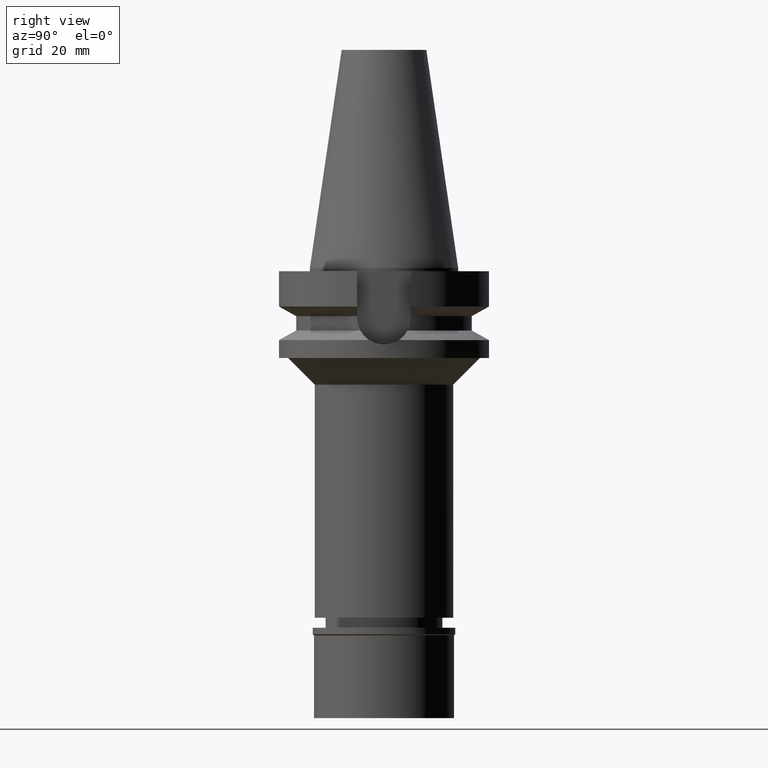
[diagram: clean part render]
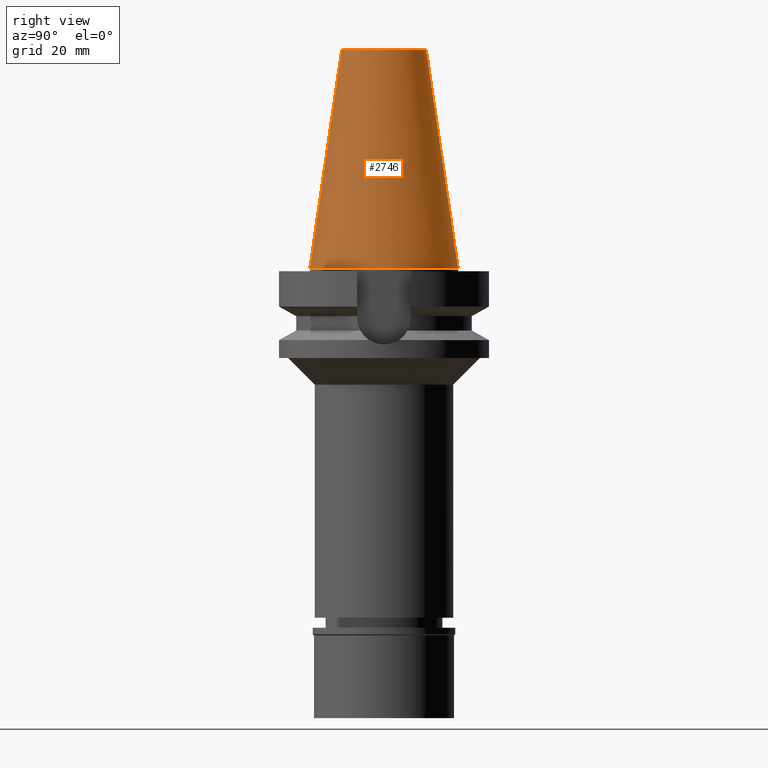
[diagram: same view with one face highlighted and labeled with its STEP entity id]
A machine part, right view. The second image highlights one B-rep face of the part: STEP entity #2746.
In plain terms, the highlighted conical surface has half-angle 8.297 deg.
Its self-contained STEP definition (entity closure, byte-faithful):
#131 = DIRECTION ( 'NONE',  ( 0.0000000000000000000, 0.0000000000000000000, -1.000000000000000000 ) ) ;
#204 = VECTOR ( 'NONE', #1346, 1000.000000000000114 ) ;
#211 = ORIENTED_EDGE ( 'NONE', *, *, #1532, .F. ) ;
#362 = CARTESIAN_POINT ( 'NONE',  ( 0.0000000000000000000, -12.68766899429999917, 65.40000000000000568 ) ) ;
#401 = CARTESIAN_POINT ( 'NONE',  ( 0.0000000000000000000, -12.68766899429999917, 65.40000000000000568 ) ) ;
#446 = EDGE_LOOP ( 'NONE', ( #1833, #1605, #211, #604 ) ) ;
#604 = ORIENTED_EDGE ( 'NONE', *, *, #1192, .F. ) ;
#638 = VERTEX_POINT ( 'NONE', #2856 ) ;
#637 = CARTESIAN_POINT ( 'NONE',  ( 0.0000000000000000000, 22.22500000000000142, 1.421085471519999843E-14 ) ) ;
#864 = DIRECTION ( 'NONE',  ( 0.0000000000000000000, 0.0000000000000000000, -1.000000000000000000 ) ) ;
#879 = CARTESIAN_POINT ( 'NONE',  ( 0.0000000000000000000, 0.0000000000000000000, 32.70000000000000284 ) ) ;
#1127 = DIRECTION ( 'NONE',  ( 0.0000000000000000000, 1.000000000000000000, 0.0000000000000000000 ) ) ;
#1192 = EDGE_CURVE ( 'NONE', #3049, #1566, #2356, .T. ) ;
#1250 = AXIS2_PLACEMENT_3D ( 'NONE', #1794, #131, #1127 ) ;
#1346 = DIRECTION ( 'NONE',  ( 0.0000000000000000000, 0.1443043893539925626, -0.9895333461855498891 ) ) ;
#1364 = CIRCLE ( 'NONE', #1761, 12.68766899429999917 ) ;
#1408 = CIRCLE ( 'NONE', #1250, 22.22500000000000142 ) ;
#1532 = EDGE_CURVE ( 'NONE', #1566, #638, #1408, .T. ) ;
#1566 = VERTEX_POINT ( 'NONE', #637 ) ;
#1605 = ORIENTED_EDGE ( 'NONE', *, *, #2727, .T. ) ;
#1606 = DIRECTION ( 'NONE',  ( 0.0000000000000000000, -1.000000000000000000, 0.0000000000000000000 ) ) ;
#1630 = DIRECTION ( 'NONE',  ( 0.0000000000000000000, 0.0000000000000000000, -1.000000000000000000 ) ) ;
#1713 = CONICAL_SURFACE ( 'NONE', #2382, 17.45633449714999941, 0.1448099680379422438 ) ;
#1761 = AXIS2_PLACEMENT_3D ( 'NONE', #2310, #864, #2038 ) ;
#1794 = CARTESIAN_POINT ( 'NONE',  ( 0.0000000000000000000, 0.0000000000000000000, 0.0000000000000000000 ) ) ;
#1833 = ORIENTED_EDGE ( 'NONE', *, *, #2707, .T. ) ;
#1846 = DIRECTION ( 'NONE',  ( 0.0000000000000000000, -0.1443043893539925626, -0.9895333461855498891 ) ) ;
#2038 = DIRECTION ( 'NONE',  ( 0.0000000000000000000, 1.000000000000000000, 0.0000000000000000000 ) ) ;
#2082 = CARTESIAN_POINT ( 'NONE',  ( 0.0000000000000000000, 12.68766899429999917, 65.40000000000000568 ) ) ;
#2089 = FACE_OUTER_BOUND ( 'NONE', #446, .T. ) ;
#2310 = CARTESIAN_POINT ( 'NONE',  ( 0.0000000000000000000, 0.0000000000000000000, 65.40000000000000568 ) ) ;
#2356 = LINE ( 'NONE', #2082, #204 ) ;
#2382 = AXIS2_PLACEMENT_3D ( 'NONE', #879, #1630, #1606 ) ;
#2527 = VECTOR ( 'NONE', #1846, 1000.000000000000114 ) ;
#2554 = LINE ( 'NONE', #362, #2527 ) ;
#2707 = EDGE_CURVE ( 'NONE', #3049, #3112, #1364, .T. ) ;
#2727 = EDGE_CURVE ( 'NONE', #3112, #638, #2554, .T. ) ;
#2746 = ADVANCED_FACE ( 'NONE', ( #2089 ), #1713, .T. ) ;
#2856 = CARTESIAN_POINT ( 'NONE',  ( 0.0000000000000000000, -22.22500000000000142, 0.0000000000000000000 ) ) ;
#2956 = CARTESIAN_POINT ( 'NONE',  ( 0.0000000000000000000, 12.68766899429999917, 65.40000000000000568 ) ) ;
#3049 = VERTEX_POINT ( 'NONE', #2956 ) ;
#3112 = VERTEX_POINT ( 'NONE', #401 ) ;